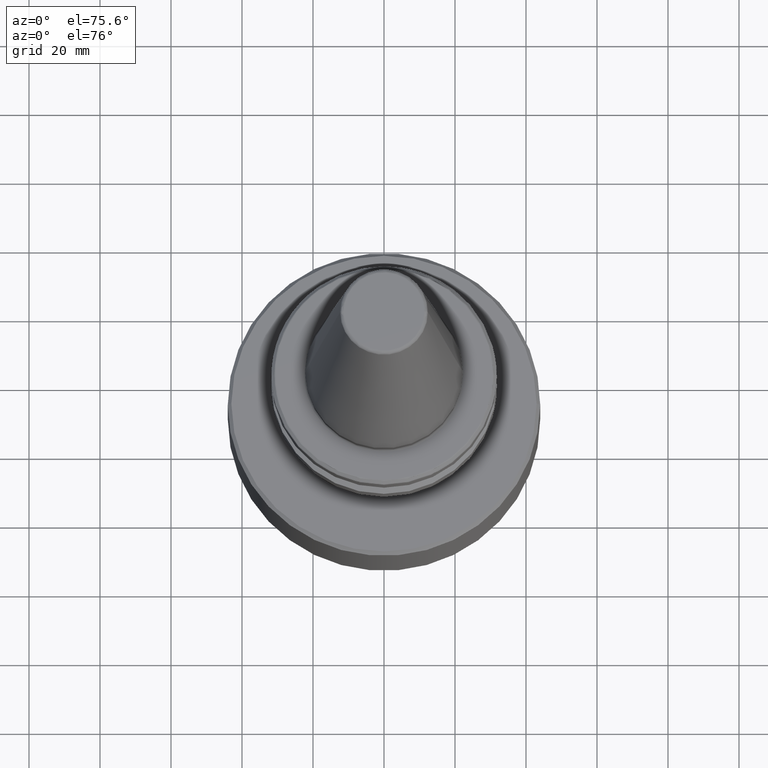
[diagram: clean part render]
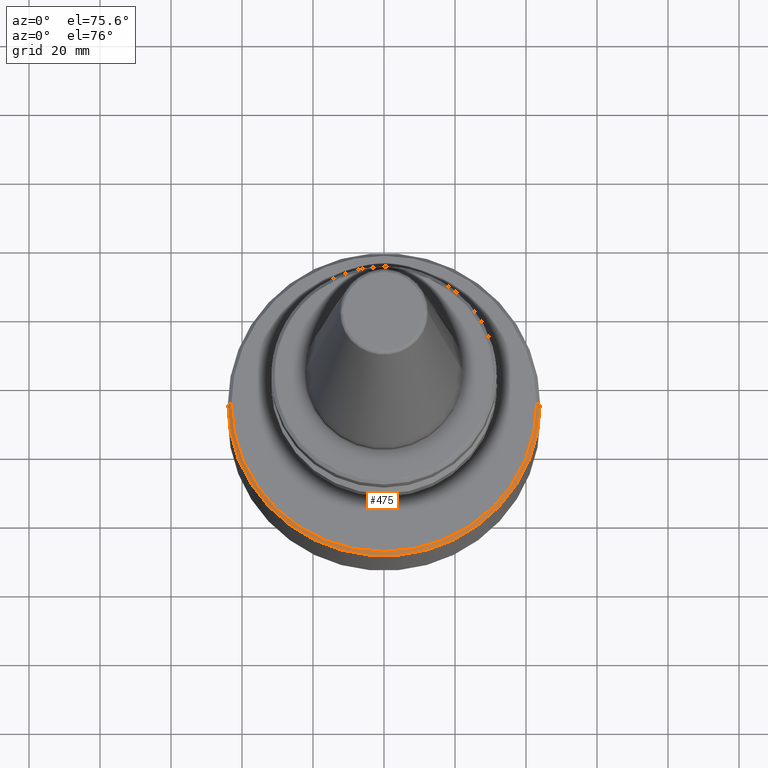
[diagram: same view with one face highlighted and labeled with its STEP entity id]
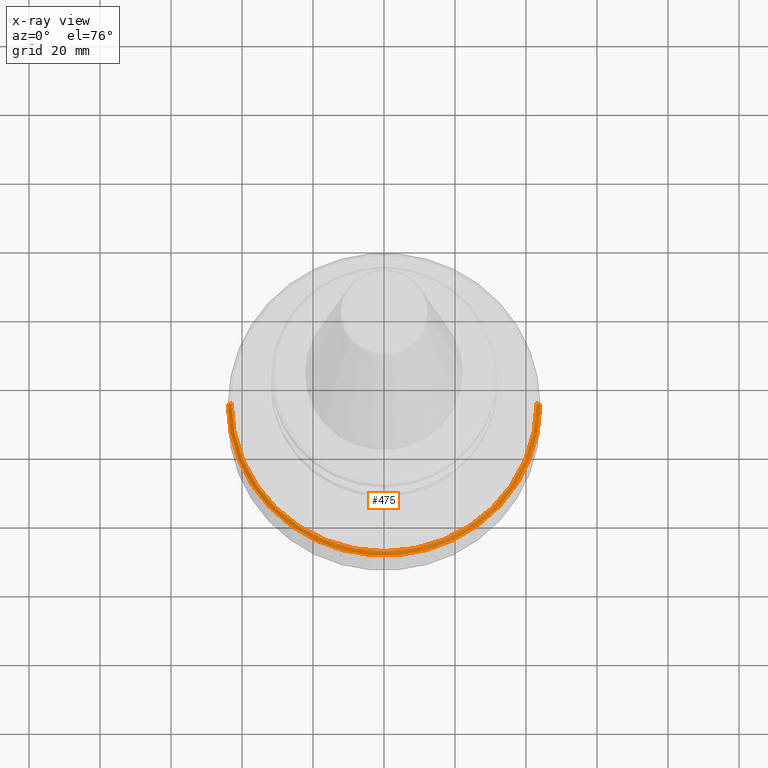
[diagram: x-ray of the same camera — body ghosted, the highlighted face saturated]
A machine part, auxiliary view. The second image highlights one B-rep face of the part: STEP entity #475.
The next image is the same camera in x-ray: the body ghosted, the highlighted face saturated — about 0% of this face is hidden behind the body in this view.
In plain terms, the highlighted conical surface has half-angle 45 deg.
Its self-contained STEP definition (entity closure, byte-faithful):
#103 = DIRECTION ( 'NONE',  ( -1.000000000000000000, 0.0000000000000000000, 0.0000000000000000000 ) ) ;
#111 = DIRECTION ( 'NONE',  ( 0.0000000000000000000, 0.0000000000000000000, -1.000000000000000000 ) ) ;
#114 = CARTESIAN_POINT ( 'NONE',  ( 0.0000000000000000000, 0.0000000000000000000, -36.00000000000001400 ) ) ;
#153 = DIRECTION ( 'NONE',  ( 0.7071067811865474600, 8.659560562354931600E-017, -0.7071067811865475700 ) ) ;
#218 = LINE ( 'NONE', #474, #1873 ) ;
#306 = AXIS2_PLACEMENT_3D ( 'NONE', #2033, #2014, #2000 ) ;
#470 = DIRECTION ( 'NONE',  ( -0.7071067811865474600, 0.0000000000000000000, -0.7071067811865475700 ) ) ;
#474 = CARTESIAN_POINT ( 'NONE',  ( -44.00000000000000000, 0.0000000000000000000, -37.00000000000000700 ) ) ;
#475 = ADVANCED_FACE ( 'NONE', ( #3441 ), #783, .T. ) ;
#483 = VERTEX_POINT ( 'NONE', #2462 ) ;
#544 = CARTESIAN_POINT ( 'NONE',  ( 44.00000000000000000, 5.388445916248353600E-015, -37.00000000000000700 ) ) ;
#545 = VERTEX_POINT ( 'NONE', #2266 ) ;
#762 = EDGE_CURVE ( 'NONE', #545, #2180, #218, .T. ) ;
#783 = CONICAL_SURFACE ( 'NONE', #1245, 44.00000000000000000, 0.7853981633974482800 ) ;
#839 = ORIENTED_EDGE ( 'NONE', *, *, #961, .T. ) ;
#905 = EDGE_LOOP ( 'NONE', ( #979, #839, #1263, #1670 ) ) ;
#961 = EDGE_CURVE ( 'NONE', #483, #545, #1545, .T. ) ;
#979 = ORIENTED_EDGE ( 'NONE', *, *, #1566, .F. ) ;
#1245 = AXIS2_PLACEMENT_3D ( 'NONE', #2219, #2172, #2143 ) ;
#1263 = ORIENTED_EDGE ( 'NONE', *, *, #762, .T. ) ;
#1319 = CARTESIAN_POINT ( 'NONE',  ( -44.00000000000000000, 0.0000000000000000000, -37.00000000000000700 ) ) ;
#1545 = CIRCLE ( 'NONE', #3219, 43.00000000000000000 ) ;
#1566 = EDGE_CURVE ( 'NONE', #483, #3071, #3959, .T. ) ;
#1670 = ORIENTED_EDGE ( 'NONE', *, *, #3428, .F. ) ;
#1788 = CIRCLE ( 'NONE', #306, 44.00000000000000000 ) ;
#1873 = VECTOR ( 'NONE', #470, 1000.000000000000000 ) ;
#2000 = DIRECTION ( 'NONE',  ( 1.000000000000000000, 0.0000000000000000000, 0.0000000000000000000 ) ) ;
#2014 = DIRECTION ( 'NONE',  ( -0.0000000000000000000, -0.0000000000000000000, -1.000000000000000000 ) ) ;
#2033 = CARTESIAN_POINT ( 'NONE',  ( 0.0000000000000000000, 0.0000000000000000000, -37.00000000000000700 ) ) ;
#2143 = DIRECTION ( 'NONE',  ( -1.000000000000000000, 0.0000000000000000000, 0.0000000000000000000 ) ) ;
#2172 = DIRECTION ( 'NONE',  ( 0.0000000000000000000, 0.0000000000000000000, -1.000000000000000000 ) ) ;
#2180 = VERTEX_POINT ( 'NONE', #1319 ) ;
#2219 = CARTESIAN_POINT ( 'NONE',  ( 0.0000000000000000000, 0.0000000000000000000, -37.00000000000000700 ) ) ;
#2266 = CARTESIAN_POINT ( 'NONE',  ( -43.00000000000000000, 0.0000000000000000000, -36.00000000000001400 ) ) ;
#2274 = CARTESIAN_POINT ( 'NONE',  ( 44.00000000000000000, 5.388445916248353600E-015, -37.00000000000000700 ) ) ;
#2462 = CARTESIAN_POINT ( 'NONE',  ( 43.00000000000000000, 5.327213576290986800E-015, -36.00000000000001400 ) ) ;
#3071 = VERTEX_POINT ( 'NONE', #544 ) ;
#3219 = AXIS2_PLACEMENT_3D ( 'NONE', #114, #111, #103 ) ;
#3428 = EDGE_CURVE ( 'NONE', #3071, #2180, #1788, .T. ) ;
#3441 = FACE_OUTER_BOUND ( 'NONE', #905, .T. ) ;
#3959 = LINE ( 'NONE', #2274, #4219 ) ;
#4219 = VECTOR ( 'NONE', #153, 1000.000000000000000 ) ;